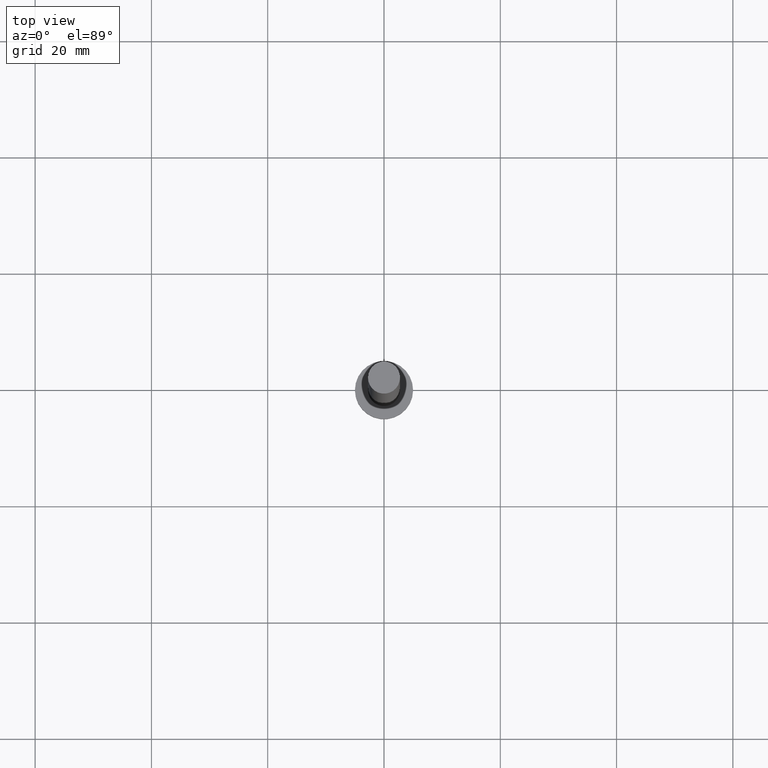
[diagram: clean part render]
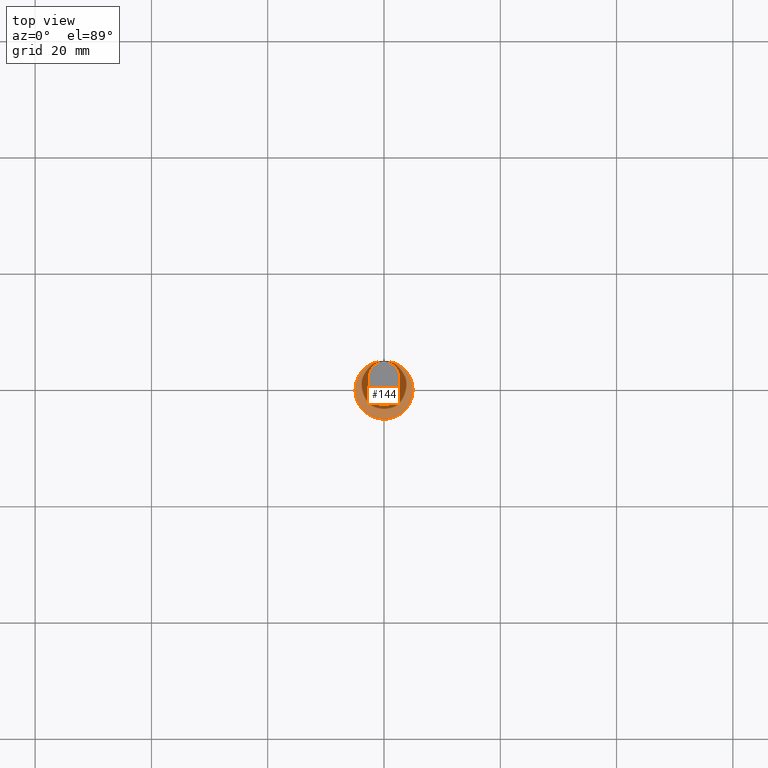
[diagram: same view with one face highlighted and labeled with its STEP entity id]
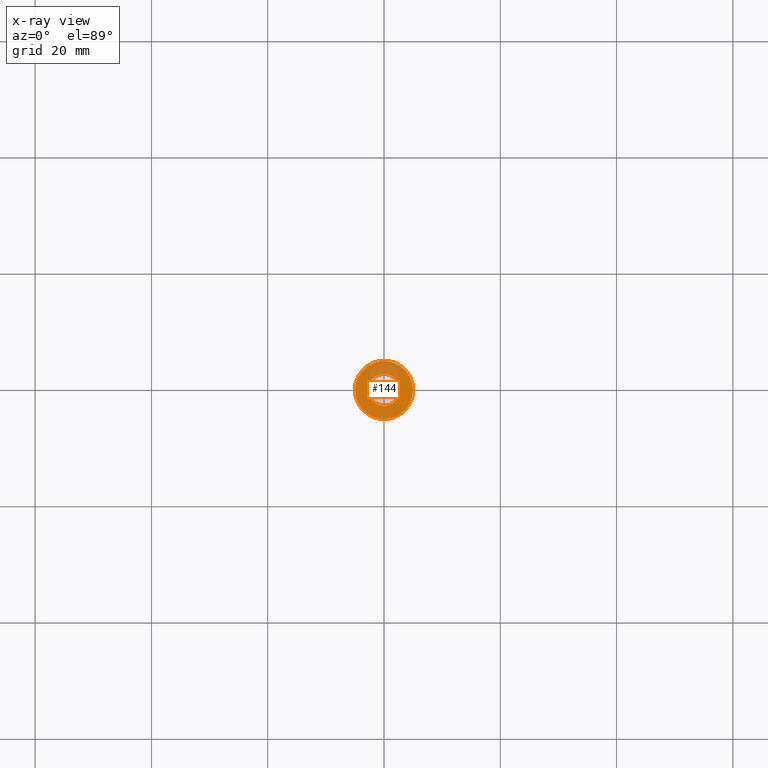
[diagram: x-ray of the same camera — body ghosted, the highlighted face saturated]
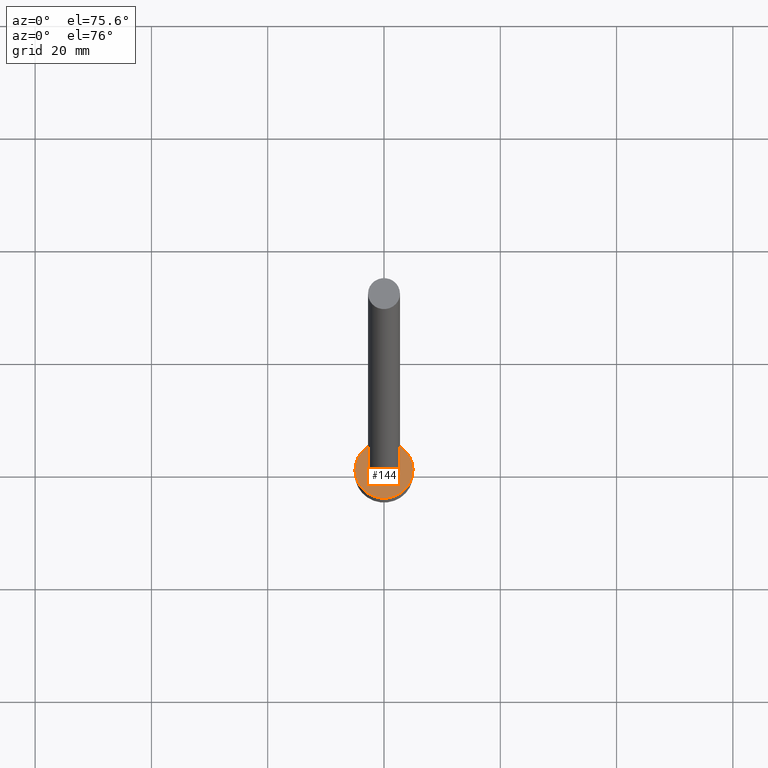
[diagram: same view with one face highlighted and labeled with its STEP entity id]
A machine part, top view. The second image highlights one B-rep face of the part: STEP entity #144.
The next image is the same camera in x-ray: the body ghosted, the highlighted face saturated — about 22% of this face is hidden behind the body in this view.
A second angle (auxiliary view) of the same face is appended — the face is thin or edge-on in the first view.
In plain terms, the highlighted planar face has unit normal (0, 0, 1).
Its self-contained STEP definition (entity closure, byte-faithful):
#3 = VERTEX_POINT ( 'NONE', #110 ) ;
#8 = CIRCLE ( 'NONE', #222, 2.750000000000000000 ) ;
#21 = EDGE_CURVE ( 'NONE', #249, #3, #117, .T. ) ;
#38 = EDGE_CURVE ( 'NONE', #98, #106, #101, .T. ) ;
#39 = CARTESIAN_POINT ( 'NONE',  ( 0.000000000000000000, 0.000000000000000000, 3.000000000000000000 ) ) ;
#44 = EDGE_CURVE ( 'NONE', #3, #249, #8, .T. ) ;
#46 = AXIS2_PLACEMENT_3D ( 'NONE', #70, #153, #71 ) ;
#70 = CARTESIAN_POINT ( 'NONE',  ( 0.000000000000000000, 0.000000000000000000, 3.000000000000000000 ) ) ;
#71 = DIRECTION ( 'NONE',  ( 1.000000000000000000, 0.000000000000000000, 0.000000000000000000 ) ) ;
#75 = DIRECTION ( 'NONE',  ( 1.000000000000000000, 0.000000000000000000, -0.000000000000000000 ) ) ;
#78 = AXIS2_PLACEMENT_3D ( 'NONE', #214, #202, #121 ) ;
#89 = EDGE_LOOP ( 'NONE', ( #199, #95 ) ) ;
#95 = ORIENTED_EDGE ( 'NONE', *, *, #44, .F. ) ;
#98 = VERTEX_POINT ( 'NONE', #246 ) ;
#99 = EDGE_LOOP ( 'NONE', ( #192, #123 ) ) ;
#100 = EDGE_CURVE ( 'NONE', #106, #98, #108, .T. ) ;
#101 = CIRCLE ( 'NONE', #111, 5.000000000000000000 ) ;
#106 = VERTEX_POINT ( 'NONE', #217 ) ;
#108 = CIRCLE ( 'NONE', #46, 5.000000000000000000 ) ;
#110 = CARTESIAN_POINT ( 'NONE',  ( 2.750000000000000000, 3.367778697655220519E-16, 3.000000000000000000 ) ) ;
#111 = AXIS2_PLACEMENT_3D ( 'NONE', #146, #208, #220 ) ;
#114 = FACE_BOUND ( 'NONE', #89, .T. ) ;
#117 = CIRCLE ( 'NONE', #78, 2.750000000000000000 ) ;
#121 = DIRECTION ( 'NONE',  ( 1.000000000000000000, 0.000000000000000000, 0.000000000000000000 ) ) ;
#123 = ORIENTED_EDGE ( 'NONE', *, *, #100, .T. ) ;
#125 = DIRECTION ( 'NONE',  ( 1.000000000000000000, 0.000000000000000000, 0.000000000000000000 ) ) ;
#132 = AXIS2_PLACEMENT_3D ( 'NONE', #39, #136, #75 ) ;
#136 = DIRECTION ( 'NONE',  ( 0.000000000000000000, 0.000000000000000000, 1.000000000000000000 ) ) ;
#144 = ADVANCED_FACE ( 'NONE', ( #114, #235 ), #231, .T. ) ;
#146 = CARTESIAN_POINT ( 'NONE',  ( 0.000000000000000000, 0.000000000000000000, 3.000000000000000000 ) ) ;
#148 = CARTESIAN_POINT ( 'NONE',  ( 0.000000000000000000, 0.000000000000000000, 3.000000000000000000 ) ) ;
#153 = DIRECTION ( 'NONE',  ( 0.000000000000000000, 0.000000000000000000, 1.000000000000000000 ) ) ;
#178 = CARTESIAN_POINT ( 'NONE',  ( -2.750000000000000000, 0.000000000000000000, 3.000000000000000000 ) ) ;
#192 = ORIENTED_EDGE ( 'NONE', *, *, #38, .T. ) ;
#199 = ORIENTED_EDGE ( 'NONE', *, *, #21, .F. ) ;
#202 = DIRECTION ( 'NONE',  ( 0.000000000000000000, 0.000000000000000000, 1.000000000000000000 ) ) ;
#208 = DIRECTION ( 'NONE',  ( 0.000000000000000000, 0.000000000000000000, 1.000000000000000000 ) ) ;
#214 = CARTESIAN_POINT ( 'NONE',  ( 0.000000000000000000, 0.000000000000000000, 3.000000000000000000 ) ) ;
#217 = CARTESIAN_POINT ( 'NONE',  ( 5.000000000000000000, 6.123233995736766282E-16, 3.000000000000000000 ) ) ;
#220 = DIRECTION ( 'NONE',  ( 1.000000000000000000, 0.000000000000000000, 0.000000000000000000 ) ) ;
#222 = AXIS2_PLACEMENT_3D ( 'NONE', #148, #224, #125 ) ;
#224 = DIRECTION ( 'NONE',  ( 0.000000000000000000, 0.000000000000000000, 1.000000000000000000 ) ) ;
#231 = PLANE ( 'NONE',  #132 ) ;
#235 = FACE_OUTER_BOUND ( 'NONE', #99, .T. ) ;
#246 = CARTESIAN_POINT ( 'NONE',  ( -5.000000000000000000, 0.000000000000000000, 3.000000000000000000 ) ) ;
#249 = VERTEX_POINT ( 'NONE', #178 ) ;